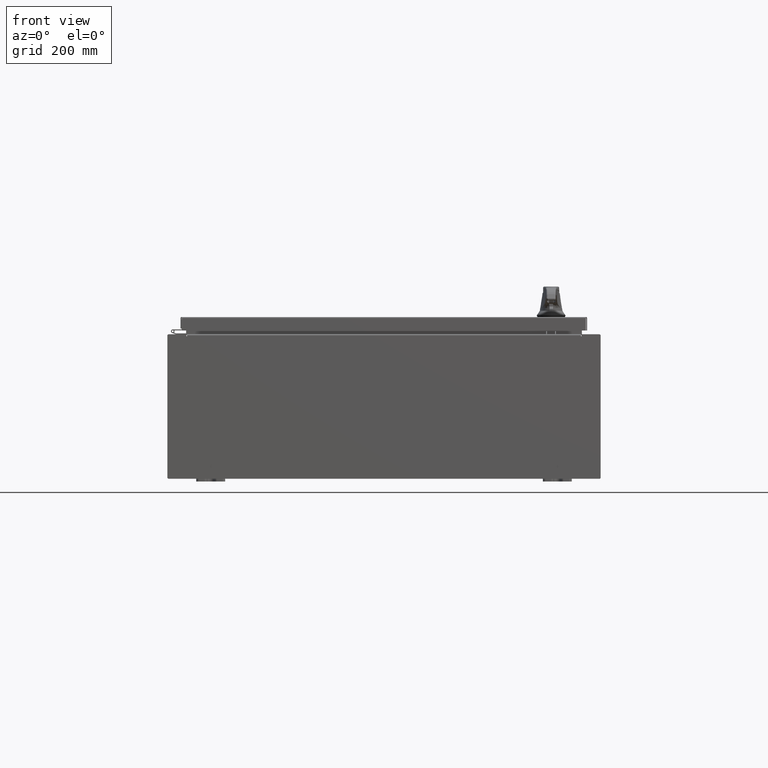
[diagram: clean part render]
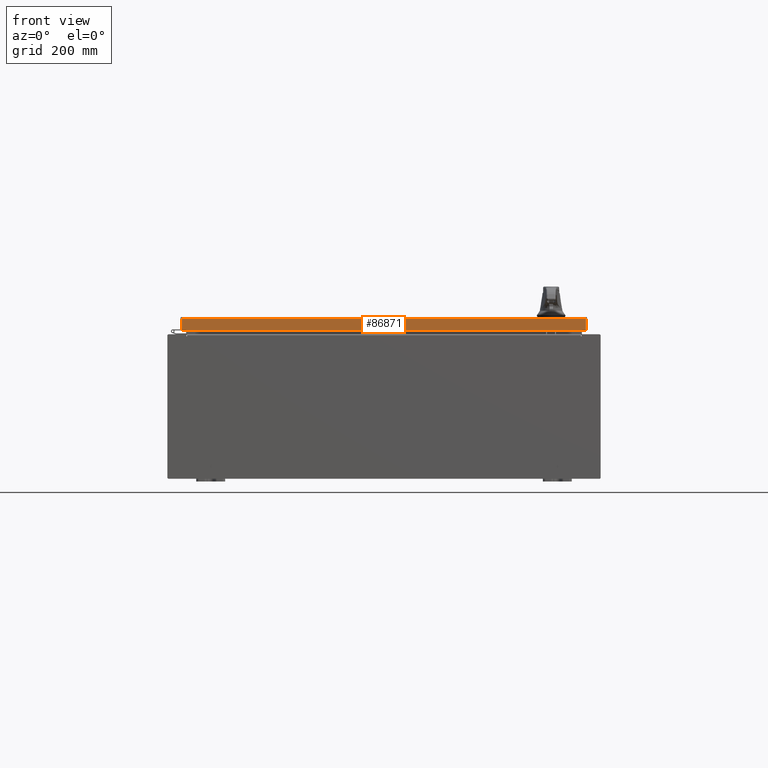
[diagram: same view with one face highlighted and labeled with its STEP entity id]
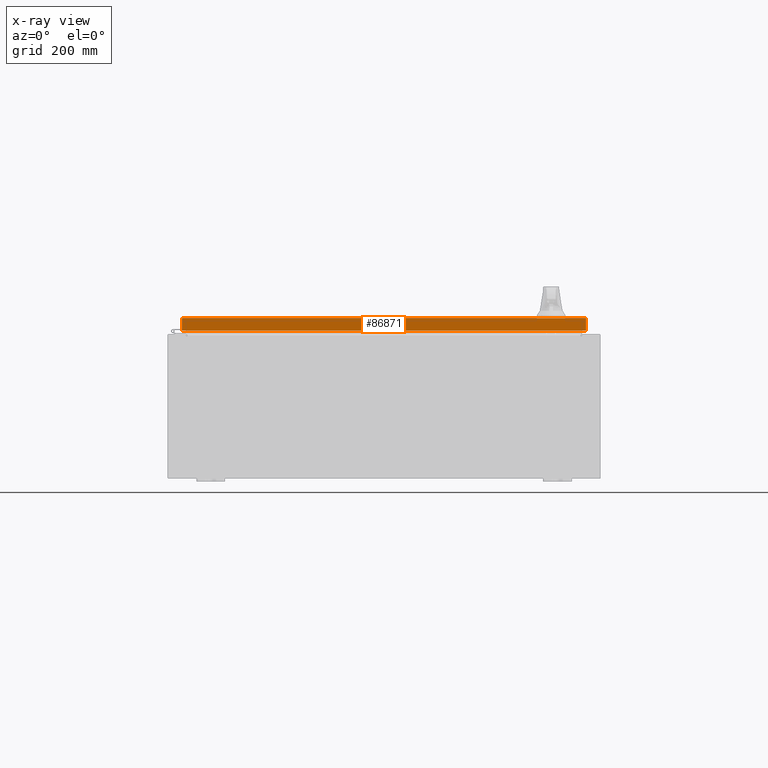
[diagram: x-ray of the same camera — body ghosted, the highlighted face saturated]
A machine part, front view. The second image highlights one B-rep face of the part: STEP entity #86871.
The next image is the same camera in x-ray: the body ghosted, the highlighted face saturated — about 0% of this face is hidden behind the body in this view.
In plain terms, the highlighted planar face has unit normal (-0, 1, -0).
Its self-contained STEP definition (entity closure, byte-faithful):
#1446 = VECTOR ( 'NONE', #33049, 39.37007874015748100 ) ;
#6259 = CARTESIAN_POINT ( 'NONE',  ( 14.07799999999999400, -17.09400000000000100, -0.9376999999999997600 ) ) ;
#10535 = PLANE ( 'NONE',  #78716 ) ;
#12590 = CARTESIAN_POINT ( 'NONE',  ( -13.98915786437627800, -17.09400000000000100, -0.9376999999999962000 ) ) ;
#12666 = LINE ( 'NONE', #66038, #34870 ) ;
#20060 = DIRECTION ( 'NONE',  ( -3.194218701939450500E-031, 1.000000000000000000, -2.532419924601866100E-015 ) ) ;
#20721 = LINE ( 'NONE', #89898, #1446 ) ;
#21446 = DIRECTION ( 'NONE',  ( 0.0000000000000000000, -2.532419924601866100E-015, -1.000000000000000000 ) ) ;
#24069 = CARTESIAN_POINT ( 'NONE',  ( 13.98915786437626400, -17.09400000000000100, -0.9376999999999997600 ) ) ;
#26490 = EDGE_LOOP ( 'NONE', ( #115377, #30566, #35896, #106049 ) ) ;
#30566 = ORIENTED_EDGE ( 'NONE', *, *, #114768, .T. ) ;
#33049 = DIRECTION ( 'NONE',  ( 1.000000000000000000, 3.194218701939450900E-031, -7.997438812334547700E-046 ) ) ;
#34870 = VECTOR ( 'NONE', #94656, 39.37007874015748100 ) ;
#35896 = ORIENTED_EDGE ( 'NONE', *, *, #54763, .F. ) ;
#39335 = LINE ( 'NONE', #6259, #109102 ) ;
#46485 = VERTEX_POINT ( 'NONE', #57119 ) ;
#47574 = VERTEX_POINT ( 'NONE', #60560 ) ;
#48225 = CARTESIAN_POINT ( 'NONE',  ( 5.460197449095296700E-030, -17.09400000000000100, 4.354999984715587800E-014 ) ) ;
#53102 = EDGE_CURVE ( 'NONE', #46485, #88056, #12666, .T. ) ;
#54303 = FACE_OUTER_BOUND ( 'NONE', #26490, .T. ) ;
#54763 = EDGE_CURVE ( 'NONE', #88056, #94257, #39335, .T. ) ;
#57119 = CARTESIAN_POINT ( 'NONE',  ( 13.98915786437626500, -17.09400000000000100, -0.08770000000000008300 ) ) ;
#60548 = EDGE_CURVE ( 'NONE', #47574, #46485, #20721, .T. ) ;
#60560 = CARTESIAN_POINT ( 'NONE',  ( -13.98915786437627800, -17.09400000000000100, -0.08770000000000008300 ) ) ;
#66038 = CARTESIAN_POINT ( 'NONE',  ( 13.98915786437626400, -17.09400000000000100, -0.07469999999999980800 ) ) ;
#78240 = CARTESIAN_POINT ( 'NONE',  ( -13.98915786437627600, -17.09400000000000100, 4.354999984715587800E-014 ) ) ;
#78716 = AXIS2_PLACEMENT_3D ( 'NONE', #48225, #20060, #86411 ) ;
#86411 = DIRECTION ( 'NONE',  ( 0.0000000000000000000, 2.532419924601866100E-015, 1.000000000000000000 ) ) ;
#86871 = ADVANCED_FACE ( 'NONE', ( #54303 ), #10535, .F. ) ;
#88056 = VERTEX_POINT ( 'NONE', #24069 ) ;
#88641 = VECTOR ( 'NONE', #21446, 39.37007874015748100 ) ;
#89898 = CARTESIAN_POINT ( 'NONE',  ( 14.07799999999999400, -17.09400000000000100, -0.08770000000000008300 ) ) ;
#91592 = LINE ( 'NONE', #78240, #88641 ) ;
#94257 = VERTEX_POINT ( 'NONE', #12590 ) ;
#94656 = DIRECTION ( 'NONE',  ( -0.0000000000000000000, -2.532419924601866100E-015, -1.000000000000000000 ) ) ;
#106049 = ORIENTED_EDGE ( 'NONE', *, *, #53102, .F. ) ;
#109102 = VECTOR ( 'NONE', #120769, 39.37007874015748100 ) ;
#114768 = EDGE_CURVE ( 'NONE', #47574, #94257, #91592, .T. ) ;
#115377 = ORIENTED_EDGE ( 'NONE', *, *, #60548, .F. ) ;
#120769 = DIRECTION ( 'NONE',  ( -1.000000000000000000, -0.0000000000000000000, 1.261330583805775800E-016 ) ) ;